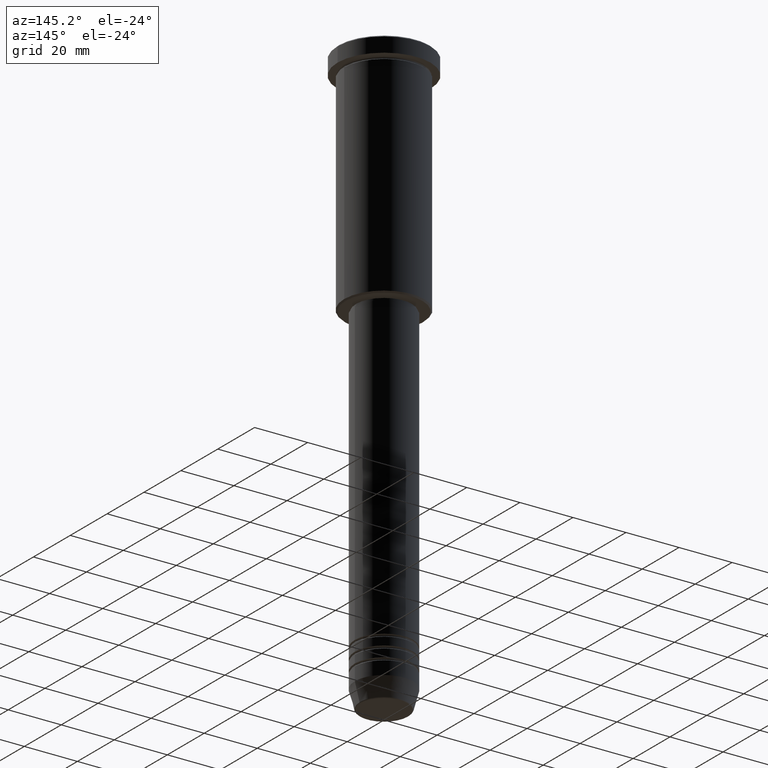
[diagram: clean part render]
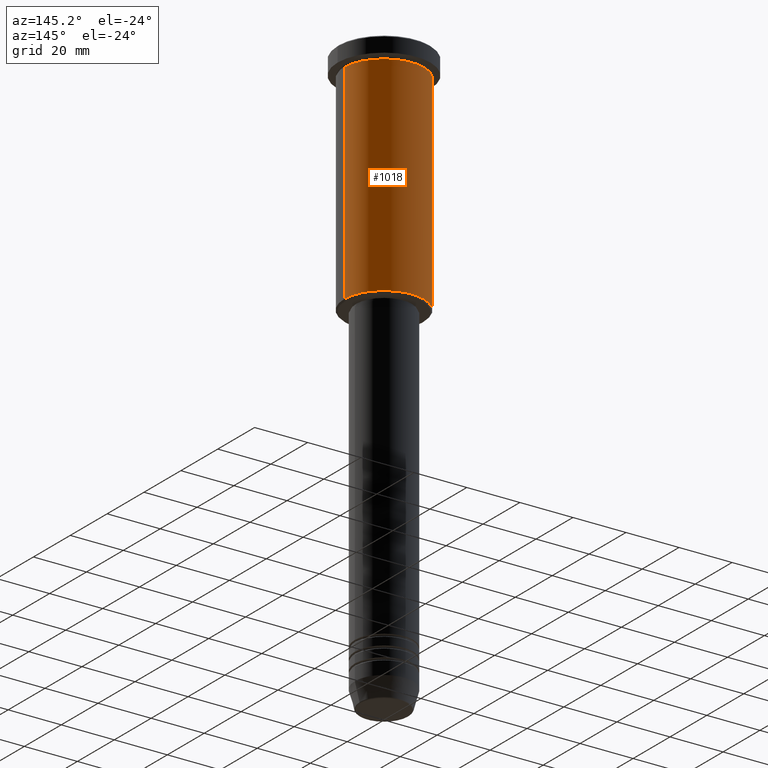
[diagram: same view with one face highlighted and labeled with its STEP entity id]
A machine part, auxiliary view. The second image highlights one B-rep face of the part: STEP entity #1018.
In plain terms, the highlighted cylindrical surface (partial cylindrical patch) has radius 15 mm, axis along (-0, -0, 1).
Its self-contained STEP definition (entity closure, byte-faithful):
#38 = DIRECTION ( 'NONE',  ( 1.000000000000000000, 0.000000000000000000, 0.000000000000000000 ) ) ;
#93 = DIRECTION ( 'NONE',  ( -0.000000000000000000, -0.000000000000000000, 1.000000000000000000 ) ) ;
#110 = VERTEX_POINT ( 'NONE', #844 ) ;
#171 = CARTESIAN_POINT ( 'NONE',  ( -15.00000000000000000, 1.836970198721029589E-15, -85.50000000000005684 ) ) ;
#178 = VECTOR ( 'NONE', #292, 1000.000000000000000 ) ;
#186 = EDGE_LOOP ( 'NONE', ( #680, #433, #787, #699 ) ) ;
#198 = DIRECTION ( 'NONE',  ( 1.000000000000000000, 0.000000000000000000, 0.000000000000000000 ) ) ;
#206 = CYLINDRICAL_SURFACE ( 'NONE', #930, 15.00000000000000000 ) ;
#216 = CARTESIAN_POINT ( 'NONE',  ( 15.00000000000000000, 0.000000000000000000, -85.50000000000005684 ) ) ;
#237 = AXIS2_PLACEMENT_3D ( 'NONE', #494, #863, #38 ) ;
#292 = DIRECTION ( 'NONE',  ( -0.000000000000000000, -0.000000000000000000, 1.000000000000000000 ) ) ;
#343 = EDGE_CURVE ( 'NONE', #1070, #1127, #977, .T. ) ;
#365 = EDGE_CURVE ( 'NONE', #523, #1070, #757, .T. ) ;
#370 = CARTESIAN_POINT ( 'NONE',  ( 15.00000000000000000, 0.000000000000000000, 0.000000000000000000 ) ) ;
#386 = FACE_OUTER_BOUND ( 'NONE', #186, .T. ) ;
#429 = VECTOR ( 'NONE', #93, 1000.000000000000000 ) ;
#433 = ORIENTED_EDGE ( 'NONE', *, *, #343, .T. ) ;
#446 = DIRECTION ( 'NONE',  ( -0.000000000000000000, -0.000000000000000000, 1.000000000000000000 ) ) ;
#494 = CARTESIAN_POINT ( 'NONE',  ( 0.000000000000000000, 0.000000000000000000, -6.999999999999995559 ) ) ;
#523 = VERTEX_POINT ( 'NONE', #216 ) ;
#524 = DIRECTION ( 'NONE',  ( -1.000000000000000000, 0.000000000000000000, 0.000000000000000000 ) ) ;
#591 = CIRCLE ( 'NONE', #237, 15.00000000000000000 ) ;
#652 = EDGE_CURVE ( 'NONE', #523, #110, #733, .T. ) ;
#680 = ORIENTED_EDGE ( 'NONE', *, *, #365, .T. ) ;
#699 = ORIENTED_EDGE ( 'NONE', *, *, #652, .F. ) ;
#733 = LINE ( 'NONE', #370, #429 ) ;
#747 = CARTESIAN_POINT ( 'NONE',  ( -15.00000000000000000, 1.836970198721029589E-15, -6.999999999999995559 ) ) ;
#757 = CIRCLE ( 'NONE', #1010, 15.00000000000000000 ) ;
#761 = EDGE_CURVE ( 'NONE', #110, #1127, #591, .T. ) ;
#787 = ORIENTED_EDGE ( 'NONE', *, *, #761, .F. ) ;
#803 = CARTESIAN_POINT ( 'NONE',  ( 0.000000000000000000, 0.000000000000000000, -85.50000000000005684 ) ) ;
#841 = CARTESIAN_POINT ( 'NONE',  ( -15.00000000000000000, 1.836970198721029589E-15, 0.000000000000000000 ) ) ;
#844 = CARTESIAN_POINT ( 'NONE',  ( 15.00000000000000000, 0.000000000000000000, -6.999999999999995559 ) ) ;
#845 = CARTESIAN_POINT ( 'NONE',  ( 0.000000000000000000, 0.000000000000000000, 0.000000000000000000 ) ) ;
#863 = DIRECTION ( 'NONE',  ( -0.000000000000000000, -0.000000000000000000, 1.000000000000000000 ) ) ;
#930 = AXIS2_PLACEMENT_3D ( 'NONE', #845, #1125, #198 ) ;
#977 = LINE ( 'NONE', #841, #178 ) ;
#1010 = AXIS2_PLACEMENT_3D ( 'NONE', #803, #446, #524 ) ;
#1018 = ADVANCED_FACE ( 'NONE', ( #386 ), #206, .T. ) ;
#1070 = VERTEX_POINT ( 'NONE', #171 ) ;
#1125 = DIRECTION ( 'NONE',  ( -0.000000000000000000, -0.000000000000000000, 1.000000000000000000 ) ) ;
#1127 = VERTEX_POINT ( 'NONE', #747 ) ;